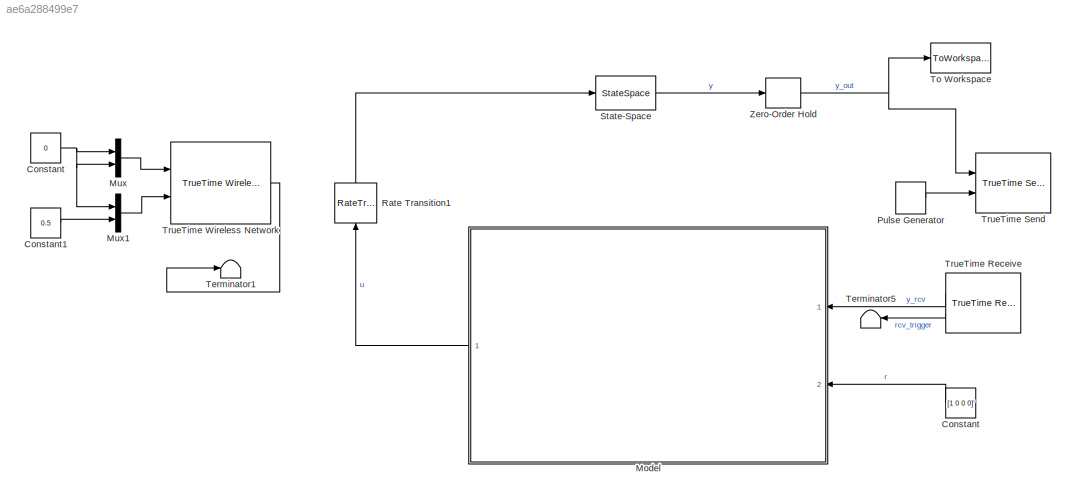
MODEL slx_ae6a288499e7
KIND model
CONFIG AbsTol = auto
CONFIG EnableMultiTasking = off
CONFIG FixedStep = Ts
CONFIG MaxStep = auto
CONFIG MinStep = auto
CONFIG RelTol = 1e-3
CONFIG SampleTimeConstraint = Unconstrained
CONFIG Solver = VariableStepAuto
CONFIG SolverName = VariableStepAuto
CONFIG StartTime = 0.0
CONFIG StopTime = 10
BLOCK [Constant]  Constant
  Value = [1 0 0 0]'
BLOCK [Constant] Constant
  Value = 0
BLOCK [Constant] Constant1
  Value = 0.5
BLOCK [ModelReference] Model
  ModelNameDialog = controller_observer.slx
  ModelReferenceVersion = 1.26
  Ports = [2, 1]
BLOCK [Mux] Mux
  DisplayOption = bar
  Inputs = 2
  Ports = [2, 1]
BLOCK [Mux] Mux1
  DisplayOption = bar
  Inputs = 2
  Ports = [2, 1]
BLOCK [DiscretePulseGenerator] Pulse Generator
  Period = 0.001
  Ports = [0, 1]
  PulseType = Time based
  PulseWidth = 5
BLOCK [RateTransition] Rate Transition1
BLOCK [StateSpace] State-Space
  A = A
  B = B
  C = C
  D = D
  InitialCondition = 0
  Ports = [1, 1]
BLOCK [Terminator] Terminator1
BLOCK [Terminator] Terminator5
BLOCK [ToWorkspace] To Workspace
  FixptAsFi = on
  MaxDataPoints = inf
  Ports = [1]
  SampleTime = -1
  Save2DSignal = 3-D array (concatenate along third dimension)
  SaveFormat = Timeseries
  VariableName = Y_out
BLOCK [Reference] TrueTime Receive  REF=truetime/TrueTime Receive  (lib defined in slx_0362a698a4ec)
  Ports = [0, 2]
  SourceBlock = truetime/TrueTime Receive
BLOCK [Reference] TrueTime Send  REF=truetime/TrueTime Send  (lib defined in slx_0362a698a4ec)
  Ports = [2]
  SourceBlock = truetime/TrueTime Send
BLOCK [Reference] TrueTime Wireless Network  REF=truetime/TrueTime Wireless   (lib defined in slx_0362a698a4ec)
Network
  Ports = [2, 1]
  SourceBlock = truetime/TrueTime Wireless \nNetwork
  SourceType = Wireless Network
BLOCK [ZeroOrderHold] Zero-Order Hold
  SampleTime = Ts
LINE  Constant:1 -> Model:2
LINE Constant1:1 -> Mux1:2
NET Constant:1 -> Mux1:1, Mux:1, Mux:2
LINE Model:1 -> Rate Transition1:1
LINE Mux1:1 -> TrueTime Wireless Network:2
LINE Mux:1 -> TrueTime Wireless Network:1
LINE Pulse Generator:1 -> TrueTime Send:2
LINE Rate Transition1:1 -> State-Space:1
LINE State-Space:1 -> Zero-Order Hold:1
LINE TrueTime Receive:1 -> Model:1
LINE TrueTime Receive:2 -> Terminator5:1
LINE TrueTime Wireless Network:1 -> Terminator1:1
NET Zero-Order Hold:1 -> To Workspace:1, TrueTime Send:1
note: NET lines group one-source signal fan-out (src -> all destinations, sorted); 1:1 wires keep LINE
